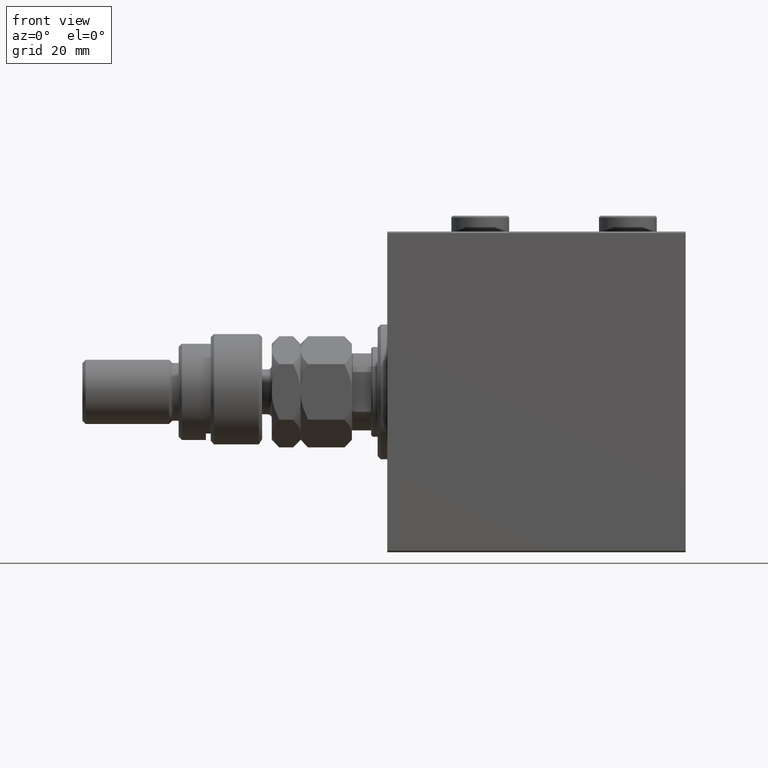
[diagram: clean part render]
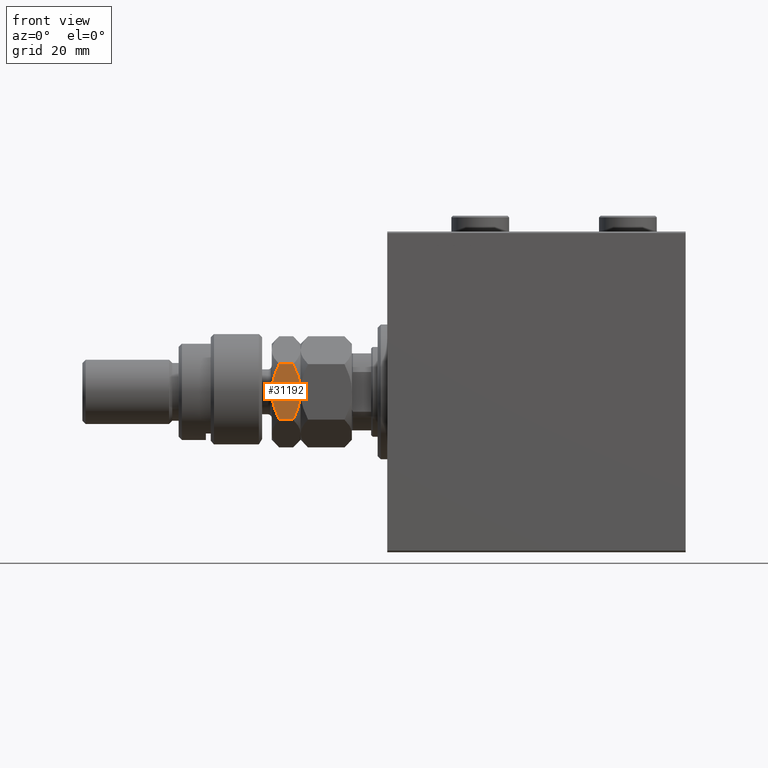
[diagram: same view with one face highlighted and labeled with its STEP entity id]
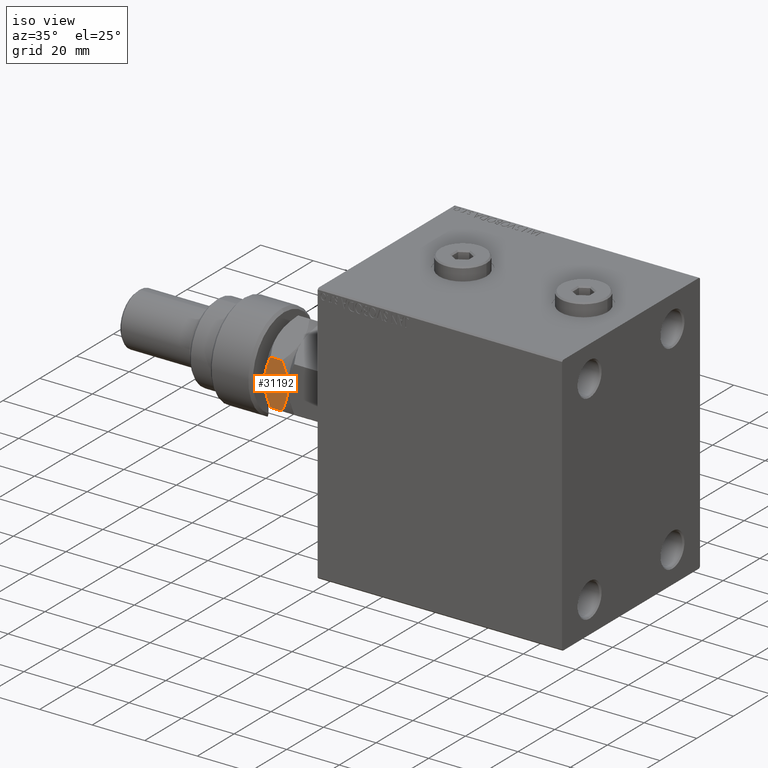
[diagram: same view with one face highlighted and labeled with its STEP entity id]
A machine part, front view. The second image highlights one B-rep face of the part: STEP entity #31192.
A second angle (iso view) of the same face is appended — the face is thin or edge-on in the first view.
In plain terms, the highlighted planar face has unit normal (0, 1, -0).
Its self-contained STEP definition (entity closure, byte-faithful):
#156 = CARTESIAN_POINT ( 'NONE',  ( 13.82525345580783771, -9.338494271363309451, 23.35773215783022039 ) ) ;
#382 = CARTESIAN_POINT ( 'NONE',  ( 12.62116548881249400, -10.03367478323606221, 17.06448606774401000 ) ) ;
#538 = VERTEX_POINT ( 'NONE', #10147 ) ;
#851 = CARTESIAN_POINT ( 'NONE',  ( 13.82389157469336283, -9.339280553791359907, 17.64148155974178778 ) ) ;
#865 = CARTESIAN_POINT ( 'NONE',  ( 7.500000000000001776, -12.99038105676657473, 25.00000000000000000 ) ) ;
#1716 = DIRECTION ( 'NONE',  ( -0.000000000000000000, -0.000000000000000000, -1.000000000000000000 ) ) ;
#2209 = CARTESIAN_POINT ( 'NONE',  ( 6.195449321423082800, -13.74356374221446586, 16.00000000000000355 ) ) ;
#3499 = ORIENTED_EDGE ( 'NONE', *, *, #6922, .T. ) ;
#4839 = CARTESIAN_POINT ( 'NONE',  ( 6.843123817691750155, -13.36962869744649751, 25.00000000000000355 ) ) ;
#5083 = CARTESIAN_POINT ( 'NONE',  ( 2.378834511187506440, -15.94708733029709080, 23.93551393225599000 ) ) ;
#6112 = LINE ( 'NONE', #32016, #46540 ) ;
#6301 = EDGE_CURVE ( 'NONE', #15379, #21917, #26883, .T. ) ;
#6922 = EDGE_CURVE ( 'NONE', #15379, #30179, #6112, .T. ) ;
#7233 = CARTESIAN_POINT ( 'NONE',  ( 10.75222765045650775, -11.11270654730956409, 16.44757140851302779 ) ) ;
#9584 = FACE_OUTER_BOUND ( 'NONE', #24284, .T. ) ;
#9611 = EDGE_CURVE ( 'NONE', #11998, #38100, #35332, .T. ) ;
#10147 = CARTESIAN_POINT ( 'NONE',  ( 14.99999999999999822, -8.660254037844383745, 22.67949192431123961 ) ) ;
#11602 = CARTESIAN_POINT ( 'NONE',  ( 10.11832554202262280, -11.47869010025374514, 16.28380266194629655 ) ) ;
#11847 = CARTESIAN_POINT ( 'NONE',  ( 15.00000000000000000, -8.660254037844381969, 18.32050807568876394 ) ) ;
#11871 = ORIENTED_EDGE ( 'NONE', *, *, #26099, .F. ) ;
#11924 = CARTESIAN_POINT ( 'NONE',  ( 4.881674457977378978, -14.50207201327941142, 24.71619733805371055 ) ) ;
#11998 = VERTEX_POINT ( 'NONE', #12815 ) ;
#12337 = CARTESIAN_POINT ( 'NONE',  ( 10.08691881950259273, -11.49682277995504798, 24.76967007806078414 ) ) ;
#12815 = CARTESIAN_POINT ( 'NONE',  ( 15.00000000000000000, -8.660254037844381969, 18.32050807568876394 ) ) ;
#12954 = CARTESIAN_POINT ( 'NONE',  ( 4.913081180497407274, -14.48393933357810681, 16.23032992193922297 ) ) ;
#13686 = CARTESIAN_POINT ( 'NONE',  ( 7.499999999999993783, -12.99038105676658006, 16.00000000000000000 ) ) ;
#15379 = VERTEX_POINT ( 'NONE', #39489 ) ;
#16203 = DIRECTION ( 'NONE',  ( -0.000000000000000000, -0.000000000000000000, -1.000000000000000000 ) ) ;
#16624 = CARTESIAN_POINT ( 'NONE',  ( 14.99999999999999822, -8.660254037844381969, 25.00000000000000000 ) ) ;
#16688 = CARTESIAN_POINT ( 'NONE',  ( 2.552051520948485970E-15, -17.32050807568877104, 25.00000000000000000 ) ) ;
#17421 = EDGE_CURVE ( 'NONE', #538, #11998, #39340, .T. ) ;
#17647 = PLANE ( 'NONE',  #38848 ) ;
#18471 = CARTESIAN_POINT ( 'NONE',  ( 8.156876182308245404, -12.61113341608665550, 16.00000000000000355 ) ) ;
#19499 = CARTESIAN_POINT ( 'NONE',  ( 6.176419610670697224, -13.75455055083995681, 24.94046462602529957 ) ) ;
#21917 = VERTEX_POINT ( 'NONE', #28845 ) ;
#22611 = CARTESIAN_POINT ( 'NONE',  ( 8.823580389329300999, -12.22621156269319798, 16.05953537397470043 ) ) ;
#23406 = CARTESIAN_POINT ( 'NONE',  ( 4.247772349543486925, -14.86805556622359070, 24.55242859148698642 ) ) ;
#24208 = CARTESIAN_POINT ( 'NONE',  ( 2.765920654496385348E-15, -17.32050807568877104, 18.32050807568876749 ) ) ;
#24284 = EDGE_LOOP ( 'NONE', ( #42566, #39675, #28980, #45339, #3499, #11871 ) ) ;
#26099 = EDGE_CURVE ( 'NONE', #38100, #30179, #45281, .T. ) ;
#26883 = B_SPLINE_CURVE_WITH_KNOTS ( 'NONE', 3,
 ( #37604, #27560, #5083, #23406, #11924, #19499, #4839, #30496 ),
 .UNSPECIFIED., .F., .F.,
 ( 4, 2, 2, 4 ),
 ( 2.544309033651680028E-07, 0.004488823491893906975, 0.006733108022389177987, 0.008977392552884448998 ),
 .UNSPECIFIED. ) ;
#27247 = CARTESIAN_POINT ( 'NONE',  ( 8.804550678576914535, -12.23719837131868715, 25.00000000000000000 ) ) ;
#27560 = CARTESIAN_POINT ( 'NONE',  ( 1.176108425306644945, -16.64148155974179488, 23.35851844025819801 ) ) ;
#27863 = CARTESIAN_POINT ( 'NONE',  ( 1.174746544192163400, -16.64226784216984001, 17.64226784216978317 ) ) ;
#27938 = CARTESIAN_POINT ( 'NONE',  ( 7.499999999999993783, -12.99038105676658006, 16.00000000000000000 ) ) ;
#28412 = EDGE_CURVE ( 'NONE', #21917, #538, #34678, .T. ) ;
#28845 = CARTESIAN_POINT ( 'NONE',  ( 7.500000000000001776, -12.99038105676657473, 25.00000000000000000 ) ) ;
#28891 = DIRECTION ( 'NONE',  ( -0.8660254037844384856, -0.5000000000000001110, 0.000000000000000000 ) ) ;
#28980 = ORIENTED_EDGE ( 'NONE', *, *, #28412, .F. ) ;
#30179 = VERTEX_POINT ( 'NONE', #35314 ) ;
#30496 = CARTESIAN_POINT ( 'NONE',  ( 7.500000000000001776, -12.99038105676657473, 25.00000000000000000 ) ) ;
#31192 = ADVANCED_FACE ( 'NONE', ( #9584 ), #17647, .F. ) ;
#32016 = CARTESIAN_POINT ( 'NONE',  ( 2.552051520948485970E-15, -17.32050807568877104, 25.00000000000000000 ) ) ;
#34678 = B_SPLINE_CURVE_WITH_KNOTS ( 'NONE', 3,
 ( #865, #27247, #12337, #45597, #156, #41926 ),
 .UNSPECIFIED., .F., .F.,
 ( 4, 2, 4 ),
 ( 0.008977392552884448998, 0.01343452311421656706, 0.01789165367554868338 ),
 .UNSPECIFIED. ) ;
#35196 = VECTOR ( 'NONE', #1716, 1000.000000000000000 ) ;
#35314 = CARTESIAN_POINT ( 'NONE',  ( 2.765920654496385348E-15, -17.32050807568877104, 18.32050807568876749 ) ) ;
#35332 = B_SPLINE_CURVE_WITH_KNOTS ( 'NONE', 3,
 ( #11847, #851, #382, #7233, #11602, #22611, #18471, #37523 ),
 .UNSPECIFIED., .F., .F.,
 ( 4, 2, 2, 4 ),
 ( 2.544309033627217716E-07, 0.004488823491893913047, 0.006733108022389184058, 0.008977392552884455937 ),
 .UNSPECIFIED. ) ;
#37523 = CARTESIAN_POINT ( 'NONE',  ( 7.499999999999993783, -12.99038105676658006, 16.00000000000000000 ) ) ;
#37604 = CARTESIAN_POINT ( 'NONE',  ( 3.096598485618407139E-15, -17.32050807568877104, 22.67949192431123606 ) ) ;
#38100 = VERTEX_POINT ( 'NONE', #27938 ) ;
#38848 = AXIS2_PLACEMENT_3D ( 'NONE', #16688, #46743, #28891 ) ;
#39340 = LINE ( 'NONE', #16624, #35196 ) ;
#39489 = CARTESIAN_POINT ( 'NONE',  ( 3.096598485618407139E-15, -17.32050807568877104, 22.67949192431123606 ) ) ;
#39675 = ORIENTED_EDGE ( 'NONE', *, *, #17421, .F. ) ;
#41926 = CARTESIAN_POINT ( 'NONE',  ( 14.99999999999999822, -8.660254037844383745, 22.67949192431123961 ) ) ;
#42566 = ORIENTED_EDGE ( 'NONE', *, *, #9611, .F. ) ;
#43035 = CARTESIAN_POINT ( 'NONE',  ( 2.383929548160350187, -15.94414570932928932, 17.06047903137087829 ) ) ;
#45281 = B_SPLINE_CURVE_WITH_KNOTS ( 'NONE', 3,
 ( #13686, #2209, #12954, #43035, #27863, #24208 ),
 .UNSPECIFIED., .F., .F.,
 ( 4, 2, 4 ),
 ( 0.008977392552884455937, 0.01343452311421657053, 0.01789165367554868338 ),
 .UNSPECIFIED. ) ;
#45339 = ORIENTED_EDGE ( 'NONE', *, *, #6301, .F. ) ;
#45597 = CARTESIAN_POINT ( 'NONE',  ( 12.61607045183964715, -10.03661640420386369, 23.93952096862911461 ) ) ;
#46540 = VECTOR ( 'NONE', #16203, 1000.000000000000000 ) ;
#46743 = DIRECTION ( 'NONE',  ( -0.5000000000000002220, 0.8660254037844385966, 0.000000000000000000 ) ) ;